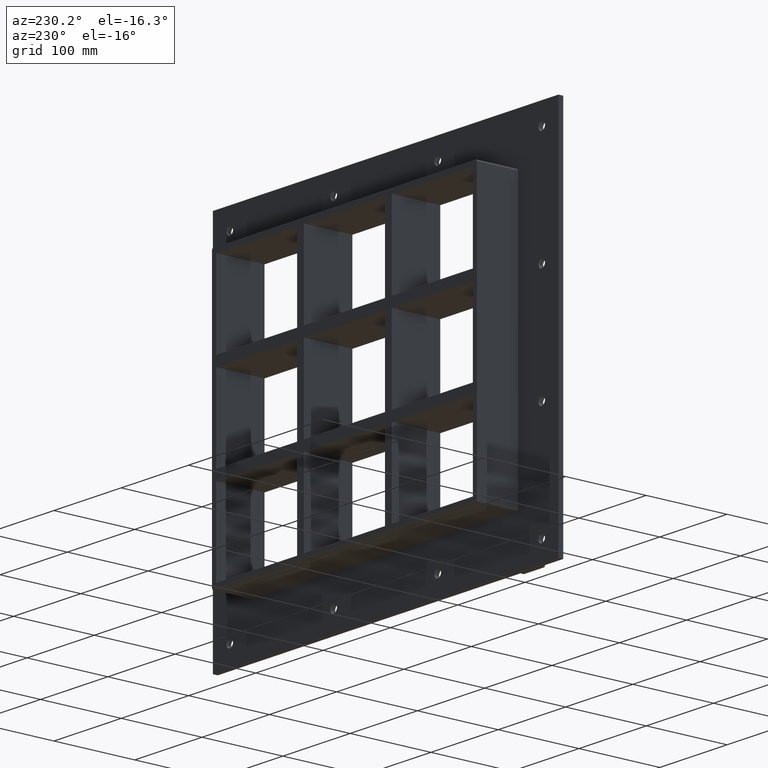
[diagram: clean part render]
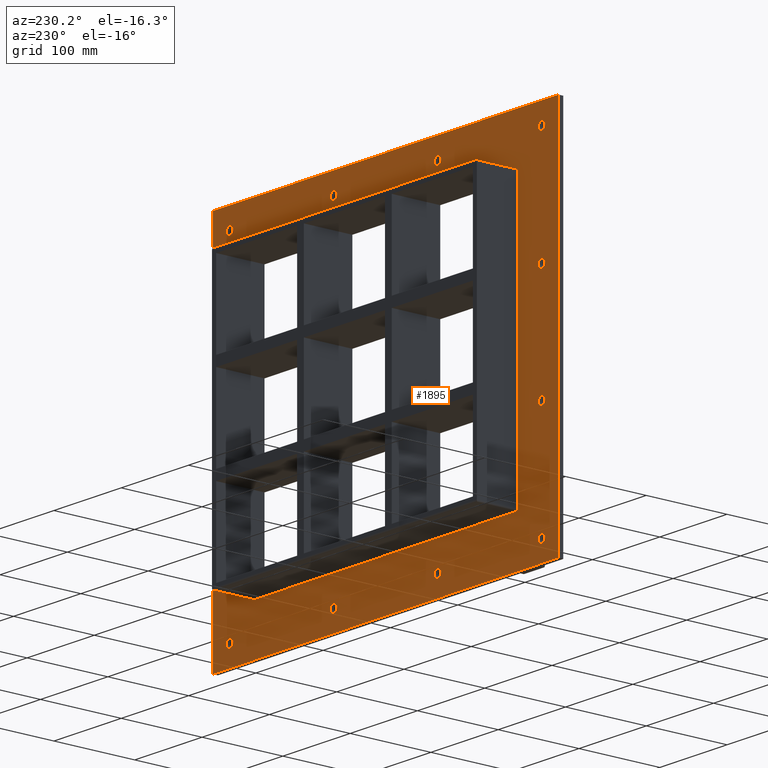
[diagram: same view with one face highlighted and labeled with its STEP entity id]
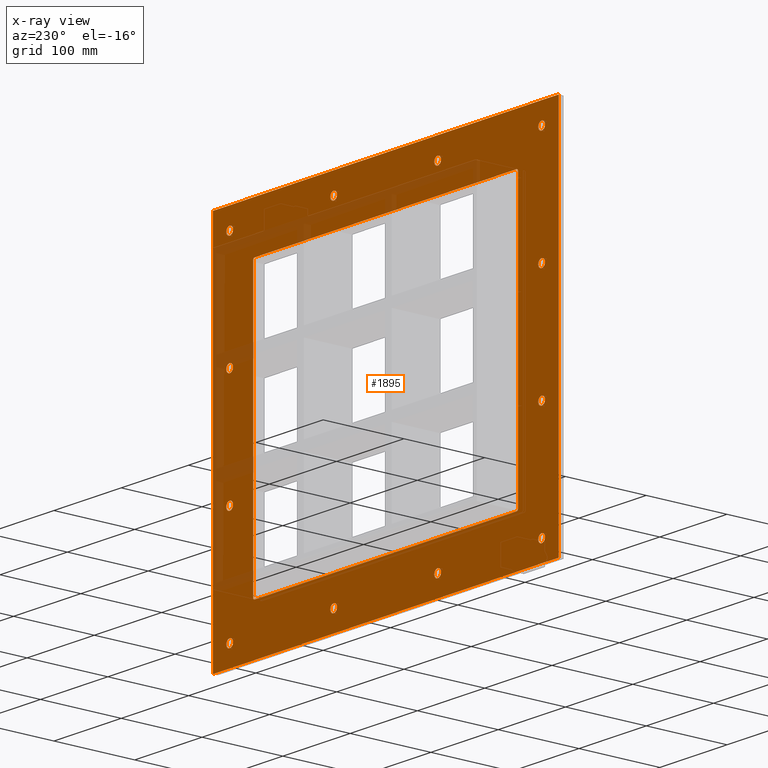
[diagram: x-ray of the same camera — body ghosted, the highlighted face saturated]
A machine part, auxiliary view. The second image highlights one B-rep face of the part: STEP entity #1895.
The next image is the same camera in x-ray: the body ghosted, the highlighted face saturated — about 11% of this face is hidden behind the body in this view.
In plain terms, the highlighted planar face has unit normal (0, 1, 0).
Its self-contained STEP definition (entity closure, byte-faithful):
#73=CARTESIAN_POINT('',(-236.75000000000017,5.999999999999943,-204.50000000000011));
#74=VERTEX_POINT('',#73);
#75=CARTESIAN_POINT('',(-231.75000000000017,5.999999999999943,-204.50000000000011));
#76=DIRECTION('',(0.0,-1.0,0.0));
#77=DIRECTION('',(1.0,0.0,0.0));
#78=AXIS2_PLACEMENT_3D('',#75,#76,#77);
#79=CIRCLE('',#78,5.0);
#80=EDGE_CURVE('',#74,#74,#79,.T.);
#101=CARTESIAN_POINT('',(226.74999999999983,5.999999999999943,-68.200000000000074));
#102=VERTEX_POINT('',#101);
#103=CARTESIAN_POINT('',(231.74999999999983,5.999999999999943,-68.200000000000074));
#104=DIRECTION('',(0.0,-1.0,0.0));
#105=DIRECTION('',(1.0,0.0,0.0));
#106=AXIS2_PLACEMENT_3D('',#103,#104,#105);
#107=CIRCLE('',#106,5.0);
#108=EDGE_CURVE('',#102,#102,#107,.T.);
#129=CARTESIAN_POINT('',(-236.75000000000017,5.999999999999943,-68.200000000000074));
#130=VERTEX_POINT('',#129);
#131=CARTESIAN_POINT('',(-231.75000000000017,5.999999999999943,-68.200000000000074));
#132=DIRECTION('',(0.0,-1.0,0.0));
#133=DIRECTION('',(1.0,0.0,0.0));
#134=AXIS2_PLACEMENT_3D('',#131,#132,#133);
#135=CIRCLE('',#134,5.0);
#136=EDGE_CURVE('',#130,#130,#135,.T.);
#157=CARTESIAN_POINT('',(226.74999999999983,5.999999999999943,68.099999999999952));
#158=VERTEX_POINT('',#157);
#159=CARTESIAN_POINT('',(231.74999999999983,5.999999999999943,68.099999999999952));
#160=DIRECTION('',(0.0,-1.0,0.0));
#161=DIRECTION('',(1.0,0.0,0.0));
#162=AXIS2_PLACEMENT_3D('',#159,#160,#161);
#163=CIRCLE('',#162,5.0);
#164=EDGE_CURVE('',#158,#158,#163,.T.);
#185=CARTESIAN_POINT('',(-236.75000000000017,5.999999999999943,68.099999999999952));
#186=VERTEX_POINT('',#185);
#187=CARTESIAN_POINT('',(-231.75000000000017,5.999999999999943,68.099999999999952));
#188=DIRECTION('',(0.0,-1.0,0.0));
#189=DIRECTION('',(1.0,0.0,0.0));
#190=AXIS2_PLACEMENT_3D('',#187,#188,#189);
#191=CIRCLE('',#190,5.0);
#192=EDGE_CURVE('',#186,#186,#191,.T.);
#213=CARTESIAN_POINT('',(-82.250000000000199,5.999999999999943,204.39999999999998));
#214=VERTEX_POINT('',#213);
#215=CARTESIAN_POINT('',(-77.250000000000199,5.999999999999943,204.39999999999998));
#216=DIRECTION('',(0.0,-1.0,0.0));
#217=DIRECTION('',(1.0,0.0,0.0));
#218=AXIS2_PLACEMENT_3D('',#215,#216,#217);
#219=CIRCLE('',#218,5.0);
#220=EDGE_CURVE('',#214,#214,#219,.T.);
#241=CARTESIAN_POINT('',(-82.250000000000199,5.999999999999943,-204.50000000000011));
#242=VERTEX_POINT('',#241);
#243=CARTESIAN_POINT('',(-77.250000000000199,5.999999999999943,-204.50000000000011));
#244=DIRECTION('',(0.0,-1.0,0.0));
#245=DIRECTION('',(1.0,0.0,0.0));
#246=AXIS2_PLACEMENT_3D('',#243,#244,#245);
#247=CIRCLE('',#246,5.0);
#248=EDGE_CURVE('',#242,#242,#247,.T.);
#269=CARTESIAN_POINT('',(72.249999999999815,5.999999999999943,204.39999999999998));
#270=VERTEX_POINT('',#269);
#271=CARTESIAN_POINT('',(77.249999999999815,5.999999999999943,204.39999999999998));
#272=DIRECTION('',(0.0,-1.0,0.0));
#273=DIRECTION('',(1.0,0.0,0.0));
#274=AXIS2_PLACEMENT_3D('',#271,#272,#273);
#275=CIRCLE('',#274,5.0);
#276=EDGE_CURVE('',#270,#270,#275,.T.);
#297=CARTESIAN_POINT('',(72.249999999999815,5.999999999999943,-204.50000000000011));
#298=VERTEX_POINT('',#297);
#299=CARTESIAN_POINT('',(77.249999999999815,5.999999999999943,-204.50000000000011));
#300=DIRECTION('',(0.0,-1.0,0.0));
#301=DIRECTION('',(1.0,0.0,0.0));
#302=AXIS2_PLACEMENT_3D('',#299,#300,#301);
#303=CIRCLE('',#302,5.0);
#304=EDGE_CURVE('',#298,#298,#303,.T.);
#325=CARTESIAN_POINT('',(226.74999999999983,5.999999999999943,-204.50000000000011));
#326=VERTEX_POINT('',#325);
#327=CARTESIAN_POINT('',(231.74999999999983,5.999999999999943,-204.50000000000011));
#328=DIRECTION('',(0.0,-1.0,0.0));
#329=DIRECTION('',(1.0,0.0,0.0));
#330=AXIS2_PLACEMENT_3D('',#327,#328,#329);
#331=CIRCLE('',#330,5.0);
#332=EDGE_CURVE('',#326,#326,#331,.T.);
#353=CARTESIAN_POINT('',(-236.75000000000017,5.999999999999943,204.39999999999998));
#354=VERTEX_POINT('',#353);
#355=CARTESIAN_POINT('',(-231.75000000000017,5.999999999999943,204.39999999999998));
#356=DIRECTION('',(0.0,-1.0,0.0));
#357=DIRECTION('',(1.0,0.0,0.0));
#358=AXIS2_PLACEMENT_3D('',#355,#356,#357);
#359=CIRCLE('',#358,5.0);
#360=EDGE_CURVE('',#354,#354,#359,.T.);
#381=CARTESIAN_POINT('',(226.74999999999983,5.999999999999943,204.39999999999998));
#382=VERTEX_POINT('',#381);
#383=CARTESIAN_POINT('',(231.74999999999983,5.999999999999943,204.39999999999998));
#384=DIRECTION('',(0.0,-1.0,0.0));
#385=DIRECTION('',(1.0,0.0,0.0));
#386=AXIS2_PLACEMENT_3D('',#383,#384,#385);
#387=CIRCLE('',#386,5.0);
#388=EDGE_CURVE('',#382,#382,#387,.T.);
#1750=CARTESIAN_POINT('',(-2.630287E-014,6.000000000000001,-2.630287E-014));
#1751=DIRECTION('',(0.0,1.0,0.0));
#1752=DIRECTION('',(0.0,0.0,1.0));
#1753=AXIS2_PLACEMENT_3D('',#1750,#1751,#1752);
#1754=PLANE('',#1753);
#1755=CARTESIAN_POINT('',(-256.75000000000006,6.000000000000001,229.50000000000006));
#1756=VERTEX_POINT('',#1755);
#1757=CARTESIAN_POINT('',(256.75000000000006,6.000000000000001,229.50000000000006));
#1758=VERTEX_POINT('',#1757);
#1759=CARTESIAN_POINT('',(-256.75000000000006,6.000000000000001,229.50000000000006));
#1760=DIRECTION('',(1.0,0.0,0.0));
#1761=VECTOR('',#1760,513.50000000000011);
#1762=LINE('',#1759,#1761);
#1763=EDGE_CURVE('',#1756,#1758,#1762,.T.);
#1764=ORIENTED_EDGE('',*,*,#1763,.T.);
#1765=CARTESIAN_POINT('',(256.75000000000006,6.000000000000001,-229.50000000000014));
#1766=VERTEX_POINT('',#1765);
#1767=CARTESIAN_POINT('',(256.75,6.000000000000001,229.50000000000006));
#1768=DIRECTION('',(0.0,0.0,-1.0));
#1769=VECTOR('',#1768,459.00000000000023);
#1770=LINE('',#1767,#1769);
#1771=EDGE_CURVE('',#1758,#1766,#1770,.T.);
#1772=ORIENTED_EDGE('',*,*,#1771,.T.);
#1773=CARTESIAN_POINT('',(-256.75000000000006,6.000000000000001,-229.50000000000014));
#1774=VERTEX_POINT('',#1773);
#1775=CARTESIAN_POINT('',(256.75,6.000000000000001,-229.50000000000011));
#1776=DIRECTION('',(-1.0,0.0,0.0));
#1777=VECTOR('',#1776,513.50000000000011);
#1778=LINE('',#1775,#1777);
#1779=EDGE_CURVE('',#1766,#1774,#1778,.T.);
#1780=ORIENTED_EDGE('',*,*,#1779,.T.);
#1781=CARTESIAN_POINT('',(-256.75000000000006,6.000000000000001,-229.50000000000011));
#1782=DIRECTION('',(0.0,0.0,1.0));
#1783=VECTOR('',#1782,459.00000000000023);
#1784=LINE('',#1781,#1783);
#1785=EDGE_CURVE('',#1774,#1756,#1784,.T.);
#1786=ORIENTED_EDGE('',*,*,#1785,.T.);
#1787=EDGE_LOOP('',(#1764,#1772,#1780,#1786));
#1788=FACE_OUTER_BOUND('',#1787,.T.);
#1789=ORIENTED_EDGE('',*,*,#80,.T.);
#1790=EDGE_LOOP('',(#1789));
#1791=FACE_BOUND('',#1790,.T.);
#1792=ORIENTED_EDGE('',*,*,#108,.T.);
#1793=EDGE_LOOP('',(#1792));
#1794=FACE_BOUND('',#1793,.T.);
#1795=ORIENTED_EDGE('',*,*,#136,.T.);
#1796=EDGE_LOOP('',(#1795));
#1797=FACE_BOUND('',#1796,.T.);
#1798=ORIENTED_EDGE('',*,*,#164,.T.);
#1799=EDGE_LOOP('',(#1798));
#1800=FACE_BOUND('',#1799,.T.);
#1801=ORIENTED_EDGE('',*,*,#192,.T.);
#1802=EDGE_LOOP('',(#1801));
#1803=FACE_BOUND('',#1802,.T.);
#1804=ORIENTED_EDGE('',*,*,#220,.T.);
#1805=EDGE_LOOP('',(#1804));
#1806=FACE_BOUND('',#1805,.T.);
#1807=ORIENTED_EDGE('',*,*,#248,.T.);
#1808=EDGE_LOOP('',(#1807));
#1809=FACE_BOUND('',#1808,.T.);
#1810=ORIENTED_EDGE('',*,*,#276,.T.);
#1811=EDGE_LOOP('',(#1810));
#1812=FACE_BOUND('',#1811,.T.);
#1813=ORIENTED_EDGE('',*,*,#304,.T.);
#1814=EDGE_LOOP('',(#1813));
#1815=FACE_BOUND('',#1814,.T.);
#1816=ORIENTED_EDGE('',*,*,#332,.T.);
#1817=EDGE_LOOP('',(#1816));
#1818=FACE_BOUND('',#1817,.T.);
#1819=ORIENTED_EDGE('',*,*,#360,.T.);
#1820=EDGE_LOOP('',(#1819));
#1821=FACE_BOUND('',#1820,.T.);
#1822=ORIENTED_EDGE('',*,*,#388,.T.);
#1823=EDGE_LOOP('',(#1822));
#1824=FACE_BOUND('',#1823,.T.);
#1825=CARTESIAN_POINT('',(-196.75000000000006,6.000000000000001,167.50000000000006));
#1826=VERTEX_POINT('',#1825);
#1827=CARTESIAN_POINT('',(-194.75,6.000000000000001,169.50000000000011));
#1828=VERTEX_POINT('',#1827);
#1829=CARTESIAN_POINT('',(-194.75,6.000000000000001,167.50000000000006));
#1830=DIRECTION('',(0.0,1.0,0.0));
#1831=DIRECTION('',(-0.707106781186548,0.0,0.707106781186548));
#1832=AXIS2_PLACEMENT_3D('',#1829,#1830,#1831);
#1833=CIRCLE('',#1832,2.0);
#1834=EDGE_CURVE('',#1826,#1828,#1833,.T.);
#1835=ORIENTED_EDGE('',*,*,#1834,.F.);
#1836=CARTESIAN_POINT('',(-196.75000000000006,6.000000000000001,-167.49999999999994));
#1837=VERTEX_POINT('',#1836);
#1838=CARTESIAN_POINT('',(-196.75000000000006,6.000000000000001,-167.49999999999994));
#1839=DIRECTION('',(0.0,0.0,1.0));
#1840=VECTOR('',#1839,335.0);
#1841=LINE('',#1838,#1840);
#1842=EDGE_CURVE('',#1837,#1826,#1841,.T.);
#1843=ORIENTED_EDGE('',*,*,#1842,.F.);
#1844=CARTESIAN_POINT('',(-194.75,6.000000000000001,-169.49999999999994));
#1845=VERTEX_POINT('',#1844);
#1846=CARTESIAN_POINT('',(-194.75,6.000000000000001,-167.49999999999994));
#1847=DIRECTION('',(0.0,1.0,0.0));
#1848=DIRECTION('',(-0.707106781186548,0.0,-0.707106781186548));
#1849=AXIS2_PLACEMENT_3D('',#1846,#1847,#1848);
#1850=CIRCLE('',#1849,2.0);
#1851=EDGE_CURVE('',#1845,#1837,#1850,.T.);
#1852=ORIENTED_EDGE('',*,*,#1851,.F.);
#1853=CARTESIAN_POINT('',(194.75,6.000000000000001,-169.49999999999994));
#1854=VERTEX_POINT('',#1853);
#1855=CARTESIAN_POINT('',(194.75,6.000000000000001,-169.49999999999994));
#1856=DIRECTION('',(-1.0,0.0,0.0));
#1857=VECTOR('',#1856,389.5);
#1858=LINE('',#1855,#1857);
#1859=EDGE_CURVE('',#1854,#1845,#1858,.T.);
#1860=ORIENTED_EDGE('',*,*,#1859,.F.);
#1861=CARTESIAN_POINT('',(196.75000000000006,6.000000000000001,-167.49999999999994));
#1862=VERTEX_POINT('',#1861);
#1863=CARTESIAN_POINT('',(194.75,6.000000000000001,-167.49999999999994));
#1864=DIRECTION('',(0.0,1.0,0.0));
#1865=DIRECTION('',(0.707106781186548,0.0,-0.707106781186548));
#1866=AXIS2_PLACEMENT_3D('',#1863,#1864,#1865);
#1867=CIRCLE('',#1866,2.0);
#1868=EDGE_CURVE('',#1862,#1854,#1867,.T.);
#1869=ORIENTED_EDGE('',*,*,#1868,.F.);
#1870=CARTESIAN_POINT('',(196.75000000000006,6.000000000000001,167.50000000000011));
#1871=VERTEX_POINT('',#1870);
#1872=CARTESIAN_POINT('',(196.75000000000006,6.000000000000001,167.50000000000011));
#1873=DIRECTION('',(0.0,0.0,-1.0));
#1874=VECTOR('',#1873,335.0);
#1875=LINE('',#1872,#1874);
#1876=EDGE_CURVE('',#1871,#1862,#1875,.T.);
#1877=ORIENTED_EDGE('',*,*,#1876,.F.);
#1878=CARTESIAN_POINT('',(194.75,6.000000000000001,169.50000000000011));
#1879=VERTEX_POINT('',#1878);
#1880=CARTESIAN_POINT('',(194.75,6.000000000000001,167.50000000000011));
#1881=DIRECTION('',(0.0,1.0,0.0));
#1882=DIRECTION('',(0.70710678118656,0.0,0.707106781186535));
#1883=AXIS2_PLACEMENT_3D('',#1880,#1881,#1882);
#1884=CIRCLE('',#1883,2.0);
#1885=EDGE_CURVE('',#1879,#1871,#1884,.T.);
#1886=ORIENTED_EDGE('',*,*,#1885,.F.);
#1887=CARTESIAN_POINT('',(-194.75,6.000000000000001,169.50000000000011));
#1888=DIRECTION('',(1.0,0.0,0.0));
#1889=VECTOR('',#1888,389.5);
#1890=LINE('',#1887,#1889);
#1891=EDGE_CURVE('',#1828,#1879,#1890,.T.);
#1892=ORIENTED_EDGE('',*,*,#1891,.F.);
#1893=EDGE_LOOP('',(#1835,#1843,#1852,#1860,#1869,#1877,#1886,#1892));
#1894=FACE_BOUND('',#1893,.T.);
#1895=ADVANCED_FACE('',(#1788,#1791,#1794,#1797,#1800,#1803,#1806,#1809,#1812,#1815,#1818,#1821,#1824,#1894),#1754,.T.);